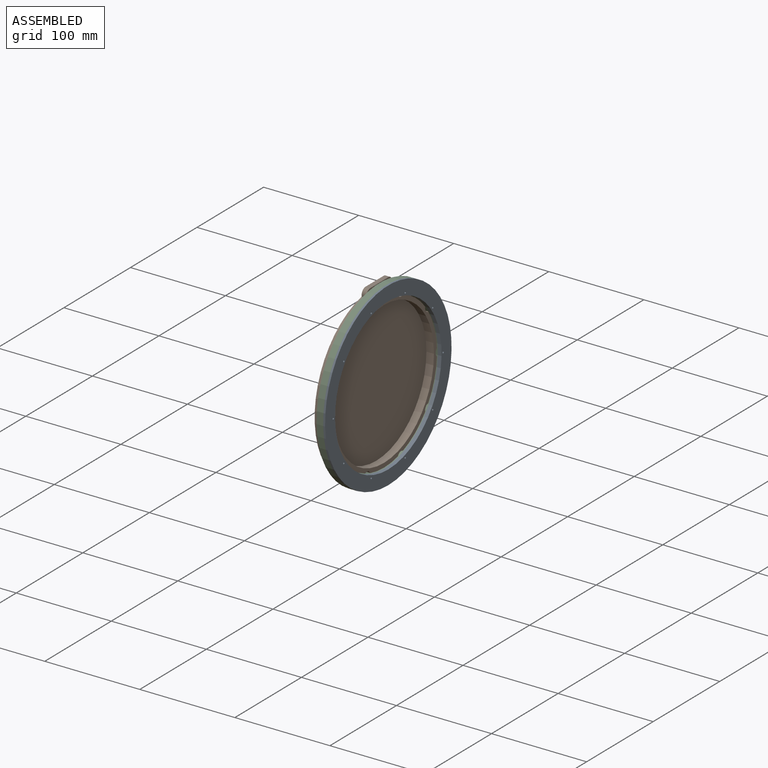
[diagram: assembled view]
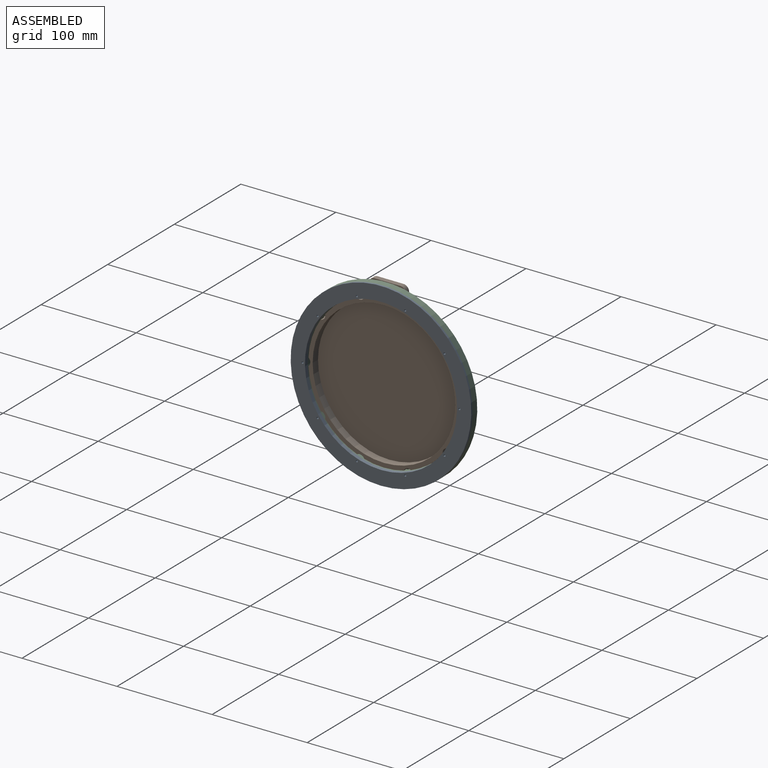
[diagram: assembled view, second angle]
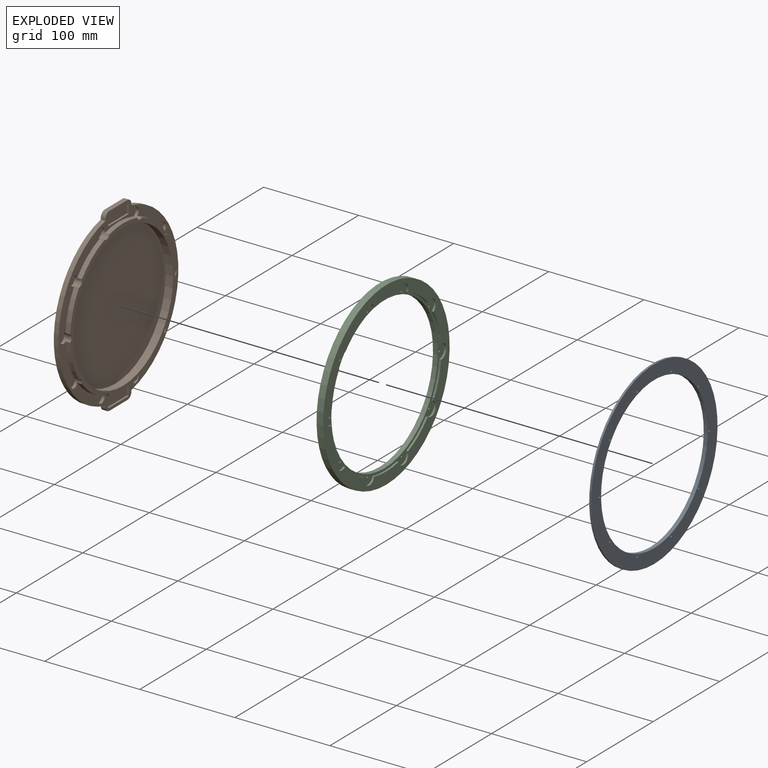
[diagram: exploded view]
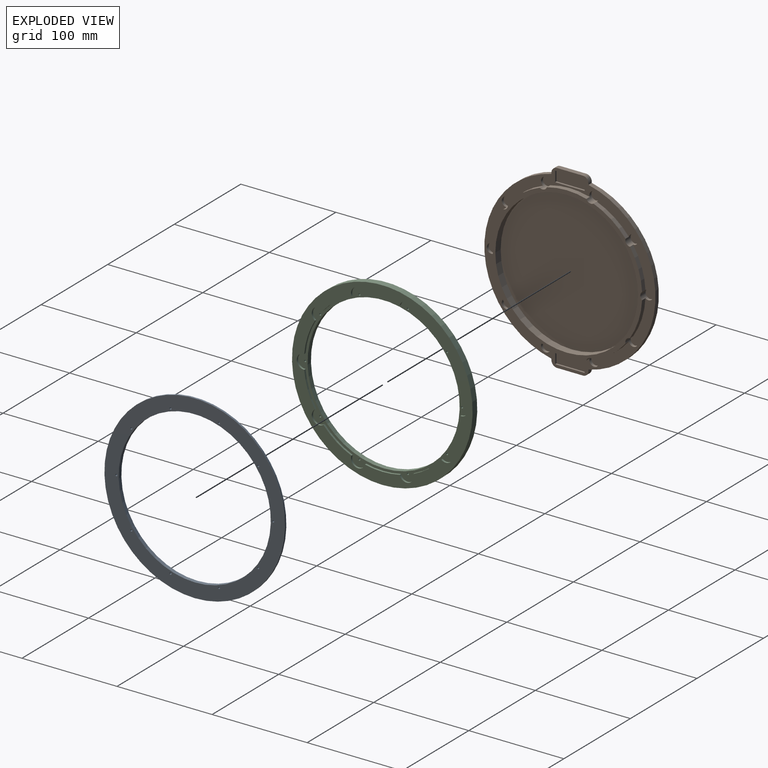
[diagram: exploded view, second angle]
ASSEMBLY  parts=3 mates=2
PART A: 35 faces, bbox 190x190x4 mm
  f0: cylinder r=82.5mm len=34.74mm, axis (0,0,-1), area 73.7mm2, adj f1,f29,f31,f34
  f1: cylinder r=7.5mm len=15mm, axis (0,0,-1), area 48.5mm2, adj f0,f2,f31,f34
  f2: cylinder r=82.5mm len=34.74mm, axis (0,0,-1), area 73.7mm2, adj f1,f3,f31,f34
  f3: cylinder r=7.5mm len=13.76mm, axis (0,0,-1), area 48.5mm2, adj f2,f4,f31,f34
  f4: cylinder r=82.5mm len=29.55mm, axis (0,0,-1), area 73.7mm2, adj f3,f5,f31,f34
  f5: cylinder r=7.5mm len=14.73mm, axis (0,0,-1), area 48.5mm2, adj f4,f6,f31,f34
  f6: cylinder r=82.5mm len=36.53mm, axis (0,0,-1), area 73.7mm2, adj f5,f7,f31,f34
  f7: cylinder r=7.5mm len=14.73mm, axis (0,0,-1), area 48.5mm2, adj f6,f8,f31,f34
  f8: cylinder r=82.5mm len=29.55mm, axis (0,0,-1), area 73.7mm2, adj f7,f9,f31,f34
  f9: cylinder r=7.5mm len=13.76mm, axis (0,0,-1), area 48.5mm2, adj f8,f10,f31,f34
  f10: cylinder r=82.5mm len=34.74mm, axis (0,0,-1), area 73.7mm2, adj f9,f11,f31,f34
  f11: cylinder r=7.5mm len=15mm, axis (0,0,-1), area 48.5mm2, adj f10,f12,f31,f34
  f12: cylinder r=82.5mm len=34.74mm, axis (0,0,-1), area 73.7mm2, adj f11,f13,f31,f34
  f13: cylinder r=7.5mm len=13.76mm, axis (0,0,-1), area 48.5mm2, adj f12,f14,f31,f34
  f14: cylinder r=82.5mm len=29.55mm, axis (0,0,-1), area 73.7mm2, adj f13,f15,f31,f34
  f15: cylinder r=7.5mm len=14.73mm, axis (0,0,-1), area 48.5mm2, adj f14,f16,f31,f34
  f16: cylinder r=82.5mm len=36.53mm, axis (0,0,-1), area 73.7mm2, adj f15,f17,f31,f34
  f17: cylinder r=7.5mm len=14.73mm, axis (0,0,-1), area 48.5mm2, adj f16,f18,f31,f34
  f18: cylinder r=82.5mm len=29.55mm, axis (0,0,-1), area 73.7mm2, adj f17,f29,f31,f34
  f19: cylinder r=1mm len=4mm, axis (0,0,-1), area 25.1mm2, adj f31,f32
  f20: cylinder r=1mm len=4mm, axis (0,0,-1), area 25.1mm2, adj f31,f32
  f21: cylinder r=1mm len=4mm, axis (0,0,-1), area 25.1mm2, adj f31,f32
  f22: cylinder r=1mm len=4mm, axis (0,0,-1), area 25.1mm2, adj f31,f32
  f23: cylinder r=1mm len=4mm, axis (0,0,-1), area 25.1mm2, adj f31,f32
  f24: cylinder r=1mm len=4mm, axis (0,0,-1), area 25.1mm2, adj f31,f32
  f25: cylinder r=1mm len=4mm, axis (0,0,-1), area 25.1mm2, adj f31,f32
  f26: cylinder r=1mm len=4mm, axis (0,0,-1), area 25.1mm2, adj f31,f32
  f27: cylinder r=80mm len=160mm, axis (0,0,-1), area 2010.6mm2, adj f31,f32
  f28: cylinder r=1mm len=4mm, axis (0,0,-1), area 25.1mm2, adj f31,f32
  f29: cylinder r=7.5mm len=13.76mm, axis (0,0,-1), area 48.5mm2, adj f0,f18,f31,f34
  f30: cylinder r=1mm len=4mm, axis (0,0,-1), area 25.1mm2, adj f31,f32
  f31: plane 180x171.92mm, normal (0,0,1), area 2145.5mm2, adj f0,f1,f2,f3,f4,f5,f6,f7
  f32: plane 190x190mm, normal (0,0,-1), area 8215.3mm2, adj f19,f20,f21,f22,f23,f24,f25,f26
  f33: cylinder r=95mm len=190mm, axis (0,0,-1), area 1193.8mm2, adj f32,f34
  f34: plane 190x190mm, normal (0,0,1), area 6069.8mm2, adj f0,f1,f2,f3,f4,f5,f6,f7
PART B: 57 faces, bbox 190.1x180x10 mm
  f0: plane 190.06x180mm, normal (0,0,1), area 4649.9mm2, adj f1,f2,f3,f4,f5,f6,f7,f8
  f1: cylinder r=5mm len=10mm, axis (0,0,-1), area 139.4mm2, adj f0,f2,f20,f22,f32
  f2: cylinder r=79.5mm len=39.57mm, axis (0,0,-1), area 210.5mm2, adj f0,f1,f3,f22
  f3: cylinder r=5mm len=10mm, axis (0,0,-1), area 139.4mm2, adj f0,f2,f4,f22,f33
  f4: cylinder r=79.5mm len=33.66mm, axis (0,0,-1), area 210.5mm2, adj f0,f3,f5,f22
  f5: cylinder r=5mm len=10mm, axis (0,0,-1), area 139.4mm2, adj f0,f4,f6,f22,f34
  f6: cylinder r=79.5mm len=41.61mm, axis (0,0,-1), area 210.5mm2, adj f0,f5,f7,f22
  f7: cylinder r=5mm len=10mm, axis (0,0,-1), area 139.4mm2, adj f0,f6,f8,f22,f35
  f8: cylinder r=79.5mm len=33.66mm, axis (0,0,-1), area 210.5mm2, adj f0,f7,f9,f22
  f9: cylinder r=5mm len=10mm, axis (0,0,-1), area 139.4mm2, adj f0,f8,f10,f22,f36
  f10: cylinder r=79.5mm len=39.57mm, axis (0,0,-1), area 210.5mm2, adj f0,f9,f11,f22
  f11: cylinder r=5mm len=10mm, axis (0,0,-1), area 139.4mm2, adj f0,f10,f12,f22,f37
  f12: cylinder r=79.5mm len=39.57mm, axis (0,0,-1), area 210.5mm2, adj f0,f11,f13,f22
  f13: cylinder r=5mm len=10mm, axis (0,0,-1), area 139.4mm2, adj f0,f12,f14,f22,f38
  f14: cylinder r=79.5mm len=33.66mm, axis (0,0,-1), area 210.5mm2, adj f0,f13,f15,f22
  f15: cylinder r=5mm len=10mm, axis (0,0,-1), area 139.4mm2, adj f0,f14,f16,f22,f39
  f16: cylinder r=79.5mm len=41.61mm, axis (0,0,-1), area 210.5mm2, adj f0,f15,f17,f22
  f17: cylinder r=5mm len=10mm, axis (0,0,-1), area 139.4mm2, adj f0,f16,f18,f22,f40
  f18: cylinder r=79.5mm len=33.66mm, axis (0,0,-1), area 210.5mm2, adj f0,f17,f19,f22
  f19: cylinder r=5mm len=10mm, axis (0,0,-1), area 139.4mm2, adj f0,f18,f20,f22,f41
  f20: cylinder r=79.5mm len=39.57mm, axis (0,0,-1), area 210.5mm2, adj f0,f1,f19,f22
  f21: cylinder r=75mm len=150mm, axis (0,0,-1), area 3769.9mm2, adj f22,f42
  f22: plane 159x158.81mm, normal (0,0,1), area 2075mm2, adj f1,f2,f3,f4,f5,f6,f7,f8
  f23: plane 190.06x180mm, normal (0,0,-1), area 25863.7mm2, adj f24,f25,f26,f27,f28,f29,f30,f31
  f24: plane 5x1.17mm, normal (0,1,0), area 5.8mm2, adj f0,f23,f25,f53
  f25: cylinder r=90mm len=175.72mm, axis (0,0,-1), area 1217.2mm2, adj f0,f23,f24,f26
  f26: plane 5x1.17mm, normal (0,1,0), area 5.8mm2, adj f0,f23,f25,f54
  f27: plane 27x5mm, normal (-1,0,0), area 135mm2, adj f0,f23,f54,f55
  f28: plane 5x1.17mm, normal (0,-1,0), area 5.8mm2, adj f0,f23,f29,f55
  f29: cylinder r=90mm len=175.72mm, axis (0,0,-1), area 1217.2mm2, adj f0,f23,f28,f30
  f30: plane 5x1.17mm, normal (0,-1,0), area 5.8mm2, adj f0,f23,f29,f56
  f31: plane 27x5mm, normal (1,0,0), area 135mm2, adj f0,f23,f53,f56
  f32: plane 10x10mm, normal (0,0,1), area 78.5mm2, adj f1
  f33: plane 10x10mm, normal (0,0,1), area 78.5mm2, adj f3
  f34: plane 10x10mm, normal (0,0,1), area 78.5mm2, adj f5
  f35: plane 10x10mm, normal (0,0,1), area 78.5mm2, adj f7
  f36: plane 10x10mm, normal (0,0,1), area 78.5mm2, adj f9
  f37: plane 10x10mm, normal (0,0,1), area 78.5mm2, adj f11
  f38: plane 10x10mm, normal (0,0,1), area 78.5mm2, adj f13
  f39: plane 10x10mm, normal (0,0,1), area 78.5mm2, adj f15
  f40: plane 10x10mm, normal (0,0,1), area 78.5mm2, adj f17
  f41: plane 10x10mm, normal (0,0,1), area 78.5mm2, adj f19
  f42: plane 150x150mm, normal (0,0,1), area 17671.5mm2, adj f21
  f43: plane 11x2mm, normal (0,-1,0), area 22mm2, adj f0,f44,f46,f47
  f44: plane 31x2mm, normal (1,0,0), area 62mm2, adj f0,f43,f45,f47
  f45: plane 11x2mm, normal (0,1,0), area 22mm2, adj f0,f44,f46,f47
  f46: plane 31x2mm, normal (-1,0,0), area 62mm2, adj f0,f43,f45,f47
  f47: plane 31x11mm, normal (0,0,1), area 341mm2, adj f43,f44,f45,f46
  f48: plane 31x2mm, normal (-1,0,0), area 62mm2, adj f0,f49,f51,f52
  f49: plane 11x2mm, normal (0,-1,0), area 22mm2, adj f0,f48,f50,f52
  f50: plane 31x2mm, normal (1,0,0), area 62mm2, adj f0,f49,f51,f52
  f51: plane 11x2mm, normal (0,1,0), area 22mm2, adj f0,f48,f50,f52
  f52: plane 31x11mm, normal (0,0,1), area 341mm2, adj f48,f49,f50,f51
  f53: cylinder r=6mm len=6mm, axis (0,0,-1), area 47.1mm2, adj f0,f23,f24,f31
  f54: cylinder r=6mm len=6mm, axis (0,0,-1), area 47.1mm2, adj f0,f23,f26,f27
  f55: cylinder r=6mm len=6mm, axis (0,0,1), area 47.1mm2, adj f0,f23,f27,f28
  f56: cylinder r=6mm len=6mm, axis (0,0,1), area 47.1mm2, adj f0,f23,f30,f31
PART C: 45 faces, bbox 190x190x7 mm
  f0: plane 190x190mm, normal (0,0,-1), area 7533.3mm2, adj f21,f23,f24,f25,f26,f27,f28,f29
  f1: cylinder r=7.5mm len=14.73mm, axis (0,0,-1), area 48.5mm2, adj f2,f20,f22,f34
  f2: cylinder r=82.5mm len=29.55mm, axis (0,0,-1), area 73.7mm2, adj f1,f3,f22,f34
  f3: cylinder r=7.5mm len=13.76mm, axis (0,0,-1), area 48.5mm2, adj f2,f4,f22,f34
  f4: cylinder r=82.5mm len=34.74mm, axis (0,0,-1), area 73.7mm2, adj f3,f5,f22,f34
  f5: cylinder r=7.5mm len=15mm, axis (0,0,-1), area 48.5mm2, adj f4,f6,f22,f34
  f6: cylinder r=82.5mm len=34.74mm, axis (0,0,-1), area 73.7mm2, adj f5,f7,f22,f34
  f7: cylinder r=7.5mm len=13.76mm, axis (0,0,-1), area 48.5mm2, adj f6,f8,f22,f34
  f8: cylinder r=82.5mm len=29.55mm, axis (0,0,-1), area 73.7mm2, adj f7,f9,f22,f34
  f9: cylinder r=7.5mm len=14.73mm, axis (0,0,-1), area 48.5mm2, adj f8,f10,f22,f34
  f10: cylinder r=82.5mm len=36.53mm, axis (0,0,-1), area 73.7mm2, adj f9,f11,f22,f34
  f11: cylinder r=7.5mm len=14.73mm, axis (0,0,-1), area 48.5mm2, adj f10,f12,f22,f34
  f12: cylinder r=82.5mm len=29.55mm, axis (0,0,-1), area 73.7mm2, adj f11,f13,f22,f34
  f13: cylinder r=7.5mm len=13.76mm, axis (0,0,-1), area 48.5mm2, adj f12,f14,f22,f34
  f14: cylinder r=82.5mm len=34.74mm, axis (0,0,-1), area 73.7mm2, adj f13,f15,f22,f34
  f15: cylinder r=7.5mm len=15mm, axis (0,0,-1), area 48.5mm2, adj f14,f16,f22,f34
  f16: cylinder r=82.5mm len=34.74mm, axis (0,0,-1), area 73.7mm2, adj f15,f17,f22,f34
  f17: cylinder r=7.5mm len=13.76mm, axis (0,0,-1), area 48.5mm2, adj f16,f18,f22,f34
  f18: cylinder r=82.5mm len=29.55mm, axis (0,0,-1), area 73.7mm2, adj f17,f19,f22,f34
  f19: cylinder r=7.5mm len=14.73mm, axis (0,0,-1), area 48.5mm2, adj f18,f20,f22,f34
  f20: cylinder r=82.5mm len=36.53mm, axis (0,0,-1), area 73.7mm2, adj f1,f19,f22,f34
  f21: cylinder r=95mm len=190mm, axis (0,0,-1), area 4178.3mm2, adj f0,f22
  f22: plane 190x190mm, normal (0,0,1), area 6069.8mm2, adj f1,f2,f3,f4,f5,f6,f7,f8
  f23: cylinder r=1mm len=5mm, axis (0,0,-1), area 31.4mm2, adj f0,f34
  f24: cylinder r=1mm len=5mm, axis (0,0,-1), area 31.4mm2, adj f0,f34
  f25: cylinder r=1mm len=5mm, axis (0,0,-1), area 31.4mm2, adj f0,f34
  f26: cylinder r=1mm len=5mm, axis (0,0,-1), area 31.4mm2, adj f0,f34
  f27: cylinder r=1mm len=5mm, axis (0,0,-1), area 31.4mm2, adj f0,f34
  f28: cylinder r=1mm len=5mm, axis (0,0,-1), area 31.4mm2, adj f0,f34
  f29: cylinder r=1mm len=5mm, axis (0,0,-1), area 31.4mm2, adj f0,f34
  f30: cylinder r=1mm len=5mm, axis (0,0,-1), area 31.4mm2, adj f0,f34
  f31: cylinder r=1mm len=5mm, axis (0,0,-1), area 31.4mm2, adj f0,f34
  f32: cylinder r=80mm len=160mm, axis (0,0,-1), area 2513.3mm2, adj f0,f34
  f33: cylinder r=1mm len=5mm, axis (0,0,-1), area 31.4mm2, adj f0,f34
  f34: plane 180x171.92mm, normal (0,0,1), area 2145.5mm2, adj f1,f2,f3,f4,f5,f6,f7,f8
  f35: plane 11x2mm, normal (0,1,0), area 22mm2, adj f0,f36,f38,f39
  f36: plane 31x2mm, normal (-1,0,0), area 62mm2, adj f0,f35,f37,f39
  f37: plane 11x2mm, normal (0,-1,0), area 22mm2, adj f0,f36,f38,f39
  f38: plane 31x2mm, normal (1,0,0), area 62mm2, adj f0,f35,f37,f39
  f39: plane 31x11mm, normal (0,0,-1), area 341mm2, adj f35,f36,f37,f38
  f40: plane 31x2mm, normal (-1,0,0), area 62mm2, adj f0,f41,f43,f44
  f41: plane 11x2mm, normal (0,-1,0), area 22mm2, adj f0,f40,f42,f44
  f42: plane 31x2mm, normal (1,0,0), area 62mm2, adj f0,f41,f43,f44
  f43: plane 11x2mm, normal (0,1,0), area 22mm2, adj f0,f40,f42,f44
  f44: plane 31x11mm, normal (0,0,-1), area 341mm2, adj f40,f41,f42,f43
PLACE A rot(axis=(-0.71,0,0.71),180deg) t=(-58.36,-143.26,-200.39)mm
PLACE B rot(axis=(0,1,0),90deg) t=(-72.85,-143.26,-200.39)mm
PLACE C rot(axis=(0,1,0),90deg) t=(-67.36,-143.26,-200.39)mm
MATE slider C.f32 <-> B.f8  axis (-1,0,0) through (-67.36,-143.26,-200.39)mm
MATE slider A.f27 <-> C.f32  axis (-1,0,0) through (-62.36,-143.26,-200.39)mm
